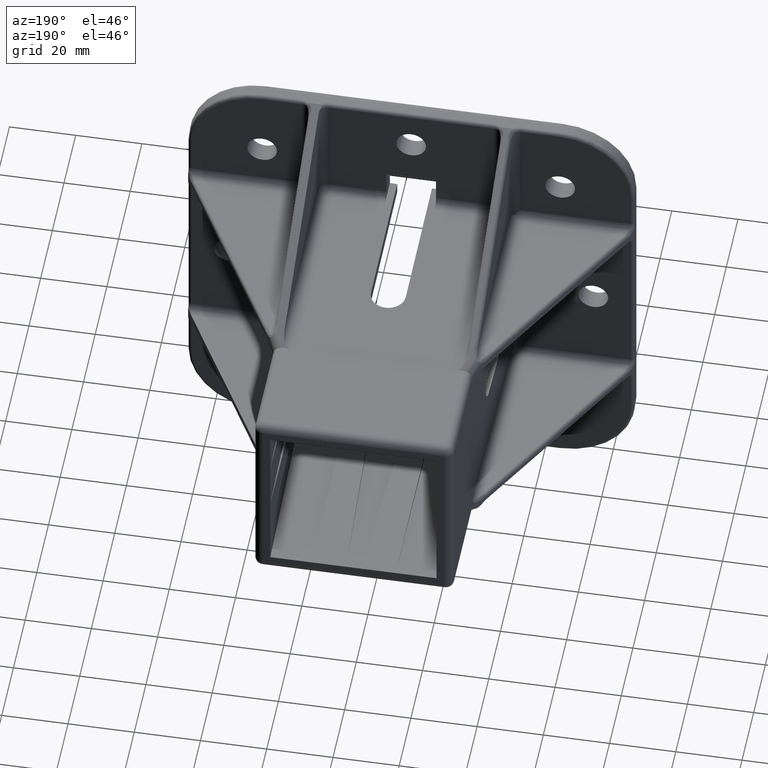
[diagram: clean part render]
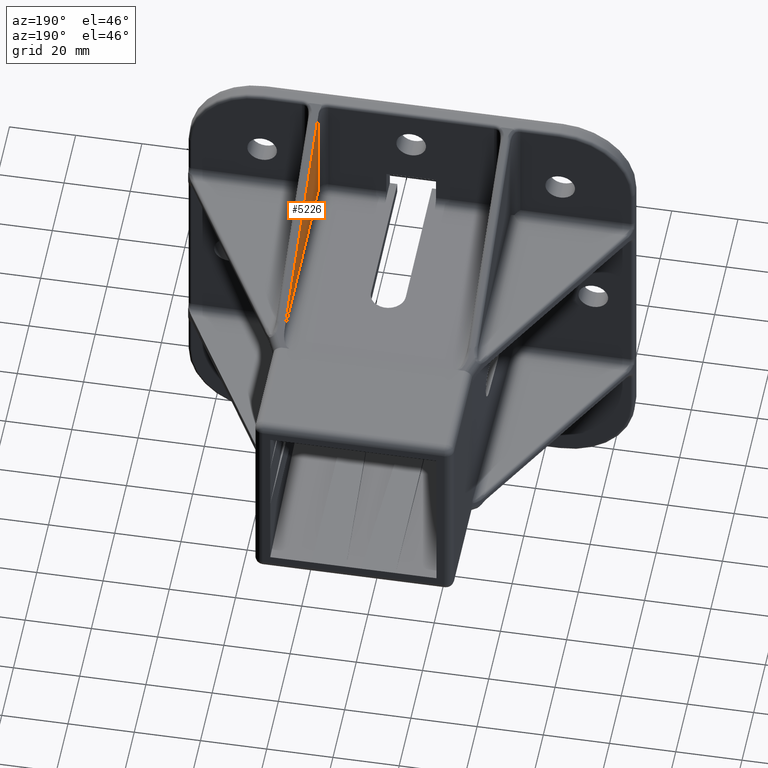
[diagram: same view with one face highlighted and labeled with its STEP entity id]
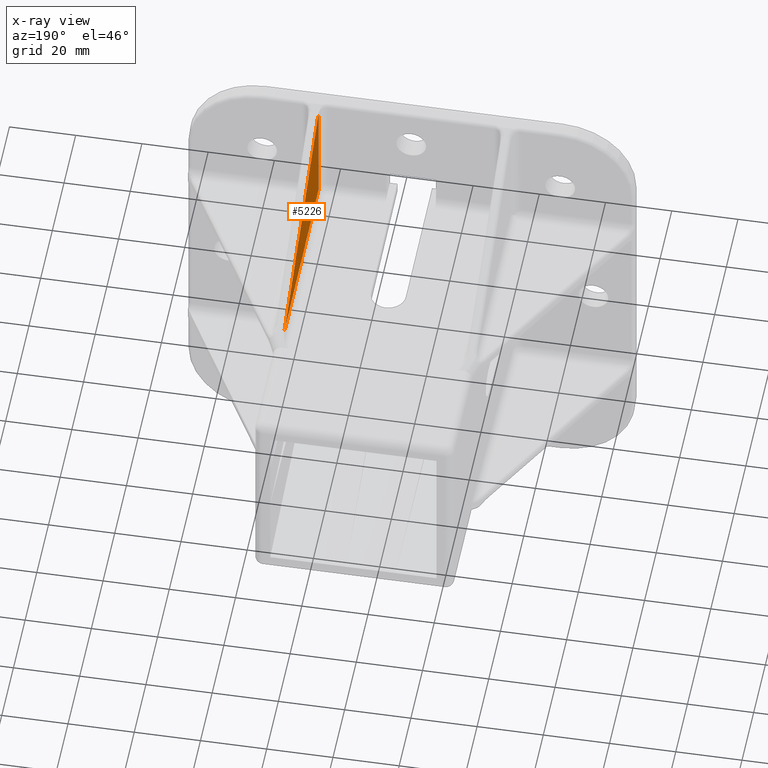
[diagram: x-ray of the same camera — body ghosted, the highlighted face saturated]
A machine part, auxiliary view. The second image highlights one B-rep face of the part: STEP entity #5226.
The next image is the same camera in x-ray: the body ghosted, the highlighted face saturated — about 0% of this face is hidden behind the body in this view.
In plain terms, the highlighted planar face has unit normal (1, 0, 0).
Its self-contained STEP definition (entity closure, byte-faithful):
#266=PLANE('',#5664);
#341=LINE('',#8134,#781);
#690=LINE('',#9071,#1130);
#691=LINE('',#9072,#1131);
#781=VECTOR('',#6151,67.3157906665072);
#1130=VECTOR('',#6916,58.4855742680439);
#1131=VECTOR('',#6917,32.3243775703285);
#1408=FACE_OUTER_BOUND('',#1728,.T.);
#1728=EDGE_LOOP('',(#4349,#4350,#4351));
#2293=VERTEX_POINT('',#8083);
#2304=VERTEX_POINT('',#8132);
#2605=VERTEX_POINT('',#9070);
#2799=EDGE_CURVE('',#2293,#2304,#341,.T.);
#3249=EDGE_CURVE('',#2304,#2605,#690,.T.);
#3250=EDGE_CURVE('',#2605,#2293,#691,.T.);
#4349=ORIENTED_EDGE('',*,*,#2799,.T.);
#4350=ORIENTED_EDGE('',*,*,#3249,.T.);
#4351=ORIENTED_EDGE('',*,*,#3250,.T.);
#5226=ADVANCED_FACE('',(#1408),#266,.F.);
#5664=AXIS2_PLACEMENT_3D('',#9069,#6914,#6915);
#6151=DIRECTION('',(0.,0.868691670302204,-0.495353189095989));
#6914=DIRECTION('center_axis',(1.,0.,0.));
#6915=DIRECTION('ref_axis',(0.,0.,-1.));
#6916=DIRECTION('',(0.,-0.999847695156391,0.0174524064372836));
#6917=DIRECTION('',(0.,0.,1.));
#8083=CARTESIAN_POINT('',(27.5,8.50000000000001,65.924427480916));
#8132=CARTESIAN_POINT('',(27.5,66.9766666318016,32.5793358977437));
#8134=CARTESIAN_POINT('',(27.5,71.5,30.));
#9069=CARTESIAN_POINT('Origin',(27.5,0.,0.));
#9070=CARTESIAN_POINT('',(27.5,8.5,33.6000499105875));
#9071=CARTESIAN_POINT('',(27.5,6.04363101609322,33.6429259906892));
#9072=CARTESIAN_POINT('',(27.5,8.5,67.35));